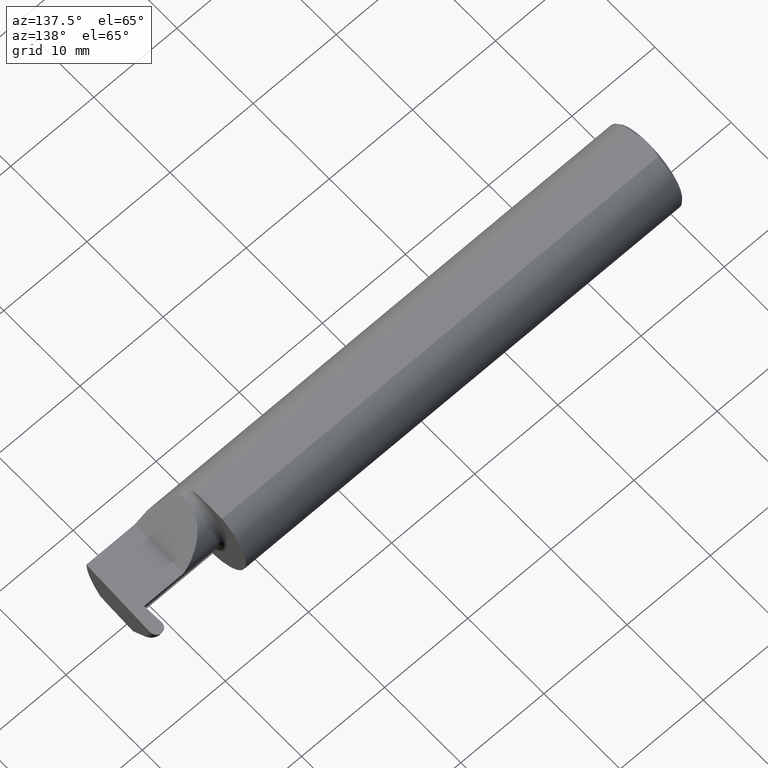
[diagram: clean part render]
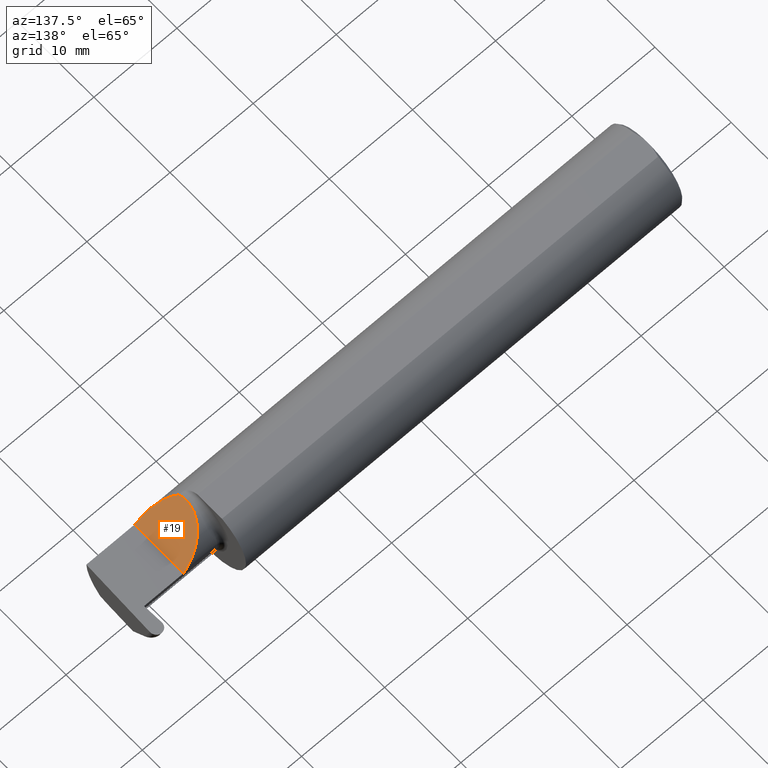
[diagram: same view with one face highlighted and labeled with its STEP entity id]
A machine part, auxiliary view. The second image highlights one B-rep face of the part: STEP entity #19.
In plain terms, the highlighted planar face has unit normal (-0.7071, 0, -0.7071).
Its self-contained STEP definition (entity closure, byte-faithful):
#19 = ADVANCED_FACE ( 'NONE', ( #667 ), #302, .F. ) ;
#28 = CARTESIAN_POINT ( 'NONE',  ( 2.260000000000000231, -0.2500000000000000555, 2.939152317953647352E-17 ) ) ;
#33 = VERTEX_POINT ( 'NONE', #618 ) ;
#38 = ORIENTED_EDGE ( 'NONE', *, *, #565, .T. ) ;
#41 = CARTESIAN_POINT ( 'NONE',  ( 2.260000000000000231, 0.06665000000000002867, 5.204748896376251932E-17 ) ) ;
#48 = CARTESIAN_POINT ( 'NONE',  ( 2.172132034355963359, 0.06665000000000001479, 0.08786796564403576149 ) ) ;
#91 = CARTESIAN_POINT ( 'NONE',  ( 2.113883229301068312, -0.1172600179964003175, 0.1461167706989304760 ) ) ;
#95 = CARTESIAN_POINT ( 'NONE',  ( 2.109999999999998987, -0.08334999999999999354, 0.1500000000000000500 ) ) ;
#109 =( BOUNDED_CURVE ( )  B_SPLINE_CURVE ( 3, ( #151, #782, #774, #216 ),
 .UNSPECIFIED., .F., .T. ) 
 B_SPLINE_CURVE_WITH_KNOTS ( ( 4, 4 ),
 ( 4.712388980384688786, 5.606916381293139295 ),
 .UNSPECIFIED. ) 
 CURVE ( )  GEOMETRIC_REPRESENTATION_ITEM ( )  RATIONAL_B_SPLINE_CURVE ( ( 1.000000000000000000, 0.9344226172588797619, 0.9344226172588797619, 1.000000000000000000 ) ) 
 REPRESENTATION_ITEM ( '' )  );
#151 = CARTESIAN_POINT ( 'NONE',  ( 2.260000000000000231, -0.1873499999999999888, 2.939152317953647352E-17 ) ) ;
#154 = CARTESIAN_POINT ( 'NONE',  ( 2.109999999999998543, 0.004517965644035750600, 0.1500000000000000500 ) ) ;
#177 = DIRECTION ( 'NONE',  ( -0.7071067811865509034, 0.000000000000000000, 0.7071067811865440200 ) ) ;
#216 = CARTESIAN_POINT ( 'NONE',  ( 2.113883229301068312, -0.1172600179964003175, 0.1461167706989304760 ) ) ;
#225 = CARTESIAN_POINT ( 'NONE',  ( 2.109999999999998987, -0.08334999999999999354, 0.1500000000000000500 ) ) ;
#292 = CARTESIAN_POINT ( 'NONE',  ( 2.260000000000000231, 0.06665000000000002867, 5.204748896376251932E-17 ) ) ;
#302 = PLANE ( 'NONE',  #764 ) ;
#313 = ORIENTED_EDGE ( 'NONE', *, *, #528, .F. ) ;
#338 = EDGE_CURVE ( 'NONE', #550, #33, #109, .T. ) ;
#352 = CARTESIAN_POINT ( 'NONE',  ( 2.109999999999998987, -0.08334999999999999354, 0.1500000000000000500 ) ) ;
#390 = ORIENTED_EDGE ( 'NONE', *, *, #338, .F. ) ;
#403 = VERTEX_POINT ( 'NONE', #41 ) ;
#419 = DIRECTION ( 'NONE',  ( -0.7071067811865441310, 0.000000000000000000, -0.7071067811865510144 ) ) ;
#424 = CARTESIAN_POINT ( 'NONE',  ( 2.260000000000000231, -0.2500000000000000555, 2.939152317953647352E-17 ) ) ;
#465 = CARTESIAN_POINT ( 'NONE',  ( 2.111300037307154209, -0.1061291577212407078, 0.1486999626928446339 ) ) ;
#526 = EDGE_LOOP ( 'NONE', ( #313, #390, #38, #638 ) ) ;
#528 = EDGE_CURVE ( 'NONE', #33, #533, #639, .T. ) ;
#533 = VERTEX_POINT ( 'NONE', #95 ) ;
#538 = CARTESIAN_POINT ( 'NONE',  ( 2.260000000000000231, -0.1873499999999999888, 2.939152317953647352E-17 ) ) ;
#550 = VERTEX_POINT ( 'NONE', #538 ) ;
#565 = EDGE_CURVE ( 'NONE', #550, #403, #788, .T. ) ;
#577 = EDGE_CURVE ( 'NONE', #533, #403, #587, .T. ) ;
#587 =( BOUNDED_CURVE ( )  B_SPLINE_CURVE ( 3, ( #225, #154, #48, #292 ),
 .UNSPECIFIED., .F., .F. ) 
 B_SPLINE_CURVE_WITH_KNOTS ( ( 4, 4 ),
 ( 0.000000000000000000, 1.570796326794896336 ),
 .UNSPECIFIED. ) 
 CURVE ( )  GEOMETRIC_REPRESENTATION_ITEM ( )  RATIONAL_B_SPLINE_CURVE ( ( 1.000000000000000000, 0.8047378541243650485, 0.8047378541243650485, 1.000000000000000000 ) ) 
 REPRESENTATION_ITEM ( '' )  );
#618 = CARTESIAN_POINT ( 'NONE',  ( 2.113883229301068312, -0.1172600179964003175, 0.1461167706989304760 ) ) ;
#638 = ORIENTED_EDGE ( 'NONE', *, *, #577, .F. ) ;
#639 =( BOUNDED_CURVE ( )  B_SPLINE_CURVE ( 3, ( #91, #465, #654, #352 ),
 .UNSPECIFIED., .F., .F. ) 
 B_SPLINE_CURVE_WITH_KNOTS ( ( 4, 4 ),
 ( 6.055147272130144920, 6.283185307179586232 ),
 .UNSPECIFIED. ) 
 CURVE ( )  GEOMETRIC_REPRESENTATION_ITEM ( )  RATIONAL_B_SPLINE_CURVE ( ( 1.000000000000000000, 0.9956712472009932036, 0.9956712472009932036, 1.000000000000000000 ) ) 
 REPRESENTATION_ITEM ( '' )  );
#654 = CARTESIAN_POINT ( 'NONE',  ( 2.109999999999998543, -0.09477667630339406402, 0.1500000000000000222 ) ) ;
#667 = FACE_OUTER_BOUND ( 'NONE', #526, .T. ) ;
#670 = VECTOR ( 'NONE', #785, 39.37007874015748143 ) ;
#764 = AXIS2_PLACEMENT_3D ( 'NONE', #424, #419, #177 ) ;
#774 = CARTESIAN_POINT ( 'NONE',  ( 2.150065971957464850, -0.1623470442677540371, 0.1099340280425340488 ) ) ;
#782 = CARTESIAN_POINT ( 'NONE',  ( 2.202189699843948301, -0.1873500000000000443, 0.05781030015605120170 ) ) ;
#785 = DIRECTION ( 'NONE',  ( -0.000000000000000000, 1.000000000000000000, -0.000000000000000000 ) ) ;
#788 = LINE ( 'NONE', #28, #670 ) ;